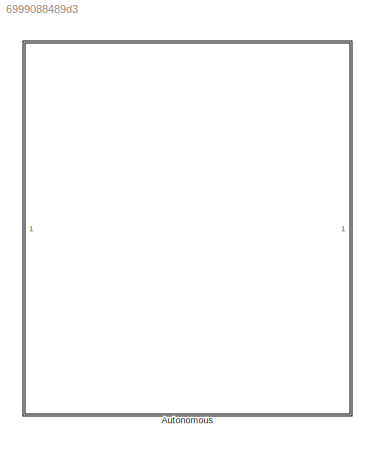
MODEL slx_6999088489d3
KIND library
CONFIG AbsTol = auto
CONFIG EnableMultiTasking = off
CONFIG FixedStep = auto
CONFIG MaxStep = auto
CONFIG MinStep = auto
CONFIG RelTol = 1e-3
CONFIG SampleTimeConstraint = Unconstrained
CONFIG SolverName = VariableStepAuto
CONFIG StartTime = 0.0
CONFIG StopTime = 10.0
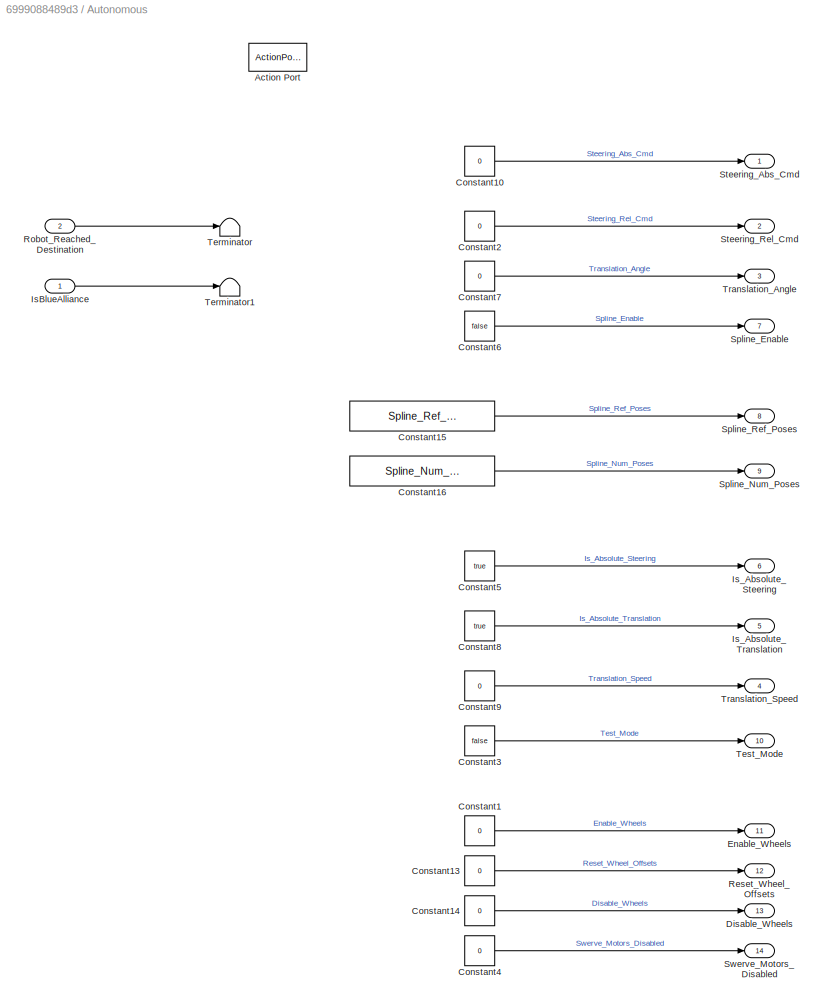
BLOCK [SubSystem] Autonomous
  TreatAsAtomicUnit = on
BLOCK [ActionPort] Autonomous/Action Port
  InitializeStates = reset
BLOCK [Constant] Autonomous/Constant1
  Value = 0
BLOCK [Constant] Autonomous/Constant10
  Value = 0
BLOCK [Constant] Autonomous/Constant13
  Value = 0
BLOCK [Constant] Autonomous/Constant14
  Value = 0
BLOCK [Constant] Autonomous/Constant15
  Value = Spline_Ref_Poses_default
BLOCK [Constant] Autonomous/Constant16
  OutDataTypeStr = double
  Value = Spline_Num_Poses_default
BLOCK [Constant] Autonomous/Constant2
  Value = 0
BLOCK [Constant] Autonomous/Constant3
  OutDataTypeStr = boolean
  Value = false
BLOCK [Constant] Autonomous/Constant4
  OutDataTypeStr = boolean
  Value = 0
BLOCK [Constant] Autonomous/Constant5
  Value = true
BLOCK [Constant] Autonomous/Constant6
  Value = false
BLOCK [Constant] Autonomous/Constant7
  Value = 0
BLOCK [Constant] Autonomous/Constant8
  Value = true
BLOCK [Constant] Autonomous/Constant9
  Value = 0
BLOCK [Outport] Autonomous/Disable_Wheels
  Port = 13
BLOCK [Outport] Autonomous/Enable_Wheels
  Port = 11
BLOCK [Inport] Autonomous/IsBlueAlliance
BLOCK [Outport] Autonomous/Is_Absolute_Steering
  Port = 6
BLOCK [Outport] Autonomous/Is_Absolute_Translation
  Port = 5
BLOCK [Outport] Autonomous/Reset_Wheel_Offsets
  Port = 12
BLOCK [Inport] Autonomous/Robot_Reached_Destination
  Port = 2
BLOCK [Outport] Autonomous/Spline_Enable
  Port = 7
BLOCK [Outport] Autonomous/Spline_Num_Poses
  Port = 9
BLOCK [Outport] Autonomous/Spline_Ref_Poses
  Port = 8
BLOCK [Outport] Autonomous/Steering_Abs_Cmd
BLOCK [Outport] Autonomous/Steering_Rel_Cmd
  Port = 2
BLOCK [Outport] Autonomous/Swerve_Motors_Disabled
  Port = 14
BLOCK [Terminator] Autonomous/Terminator
BLOCK [Terminator] Autonomous/Terminator1
BLOCK [Outport] Autonomous/Test_Mode
  Port = 10
BLOCK [Outport] Autonomous/Translation_Angle
  Port = 3
BLOCK [Outport] Autonomous/Translation_Speed
  Port = 4
LINE Autonomous/Constant10:1 -> Autonomous/Steering_Abs_Cmd:1
LINE Autonomous/Constant13:1 -> Autonomous/Reset_Wheel_Offsets:1
LINE Autonomous/Constant14:1 -> Autonomous/Disable_Wheels:1
LINE Autonomous/Constant15:1 -> Autonomous/Spline_Ref_Poses:1
LINE Autonomous/Constant16:1 -> Autonomous/Spline_Num_Poses:1
LINE Autonomous/Constant1:1 -> Autonomous/Enable_Wheels:1
LINE Autonomous/Constant2:1 -> Autonomous/Steering_Rel_Cmd:1
LINE Autonomous/Constant3:1 -> Autonomous/Test_Mode:1
LINE Autonomous/Constant4:1 -> Autonomous/Swerve_Motors_Disabled:1
LINE Autonomous/Constant5:1 -> Autonomous/Is_Absolute_Steering:1
LINE Autonomous/Constant6:1 -> Autonomous/Spline_Enable:1
LINE Autonomous/Constant7:1 -> Autonomous/Translation_Angle:1
LINE Autonomous/Constant8:1 -> Autonomous/Is_Absolute_Translation:1
LINE Autonomous/Constant9:1 -> Autonomous/Translation_Speed:1
LINE Autonomous/IsBlueAlliance:1 -> Autonomous/Terminator1:1
LINE Autonomous/Robot_Reached_Destination:1 -> Autonomous/Terminator:1
